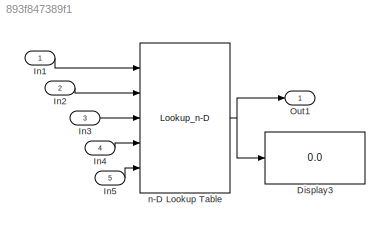
MODEL slx_893f847389f1
KIND model
CONFIG AbsTol = auto
CONFIG EnableMultiTasking = on
CONFIG FixedStep = 0.200000
CONFIG MaxStep = auto
CONFIG MinStep = auto
CONFIG RelTol = 1e-3
CONFIG SampleTimeConstraint = Unconstrained
CONFIG Solver = FixedStepDiscrete
CONFIG SolverName = FixedStepDiscrete
CONFIG StartTime = 0.0
CONFIG StopTime = 10.0
BLOCK [Display] Display3
  Decimation = 1
  Ports = [1]
BLOCK [Inport] In1
  IconDisplay = Port number
BLOCK [Inport] In2
  IconDisplay = Port number
  Port = 2
BLOCK [Inport] In3
  IconDisplay = Port number
  Port = 3
BLOCK [Inport] In4
  IconDisplay = Port number
  Port = 4
BLOCK [Inport] In5
  IconDisplay = Port number
  Port = 5
BLOCK [Outport] Out1
  IconDisplay = Port number
BLOCK [Lookup_n-D] n-D Lookup Table
  BreakpointsForDimension1 = [1 7]
  BreakpointsForDimension2 = [2  5]
  BreakpointsForDimension3 = [1  4]
  BreakpointsForDimension4 = [1 2 5]
  BreakpointsForDimension5 = [1 3]
  DiagnosticForOutOfRangeInput = Warning
  IndexSearchMethod = Linear search
  InternalRulePriority = Speed
  InterpMethod = Flat
  NumberOfTableDimensions = 5
  Ports = [5, 1]
  RndMeth = Simplest
  Table = cat(5,cat(4, cat(3, [9 2; 6 5], [7 1; 8 4]), cat(3, [3 5; 0 1], [5 6; 2 1]), cat(3, [1 2; 3 4], [4 3;2 1])),3*cat(4, cat(3, [9 2; 6 5], [7 1; 8 4]), cat(3, [3 5; 0 1], [5 6; 2 1]), cat(3, [1 2; 3 4], [4 3;2 1])))
LINE In1:1 -> n-D Lookup Table:1
LINE In2:1 -> n-D Lookup Table:2
LINE In3:1 -> n-D Lookup Table:3
LINE In4:1 -> n-D Lookup Table:4
LINE In5:1 -> n-D Lookup Table:5
NET n-D Lookup Table:1 -> Display3:1, Out1:1
note: NET lines group one-source signal fan-out (src -> all destinations, sorted); 1:1 wires keep LINE
